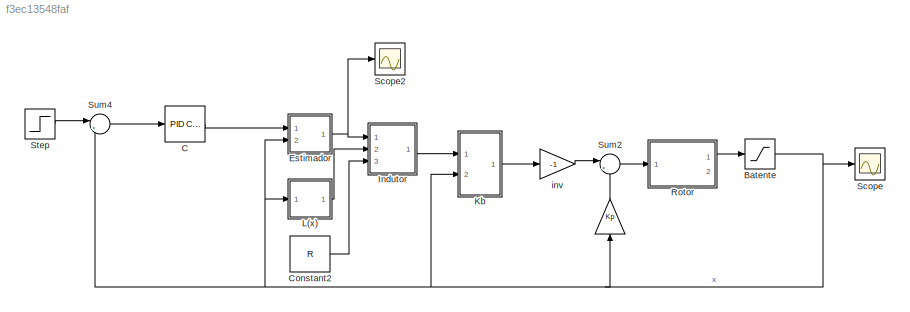
MODEL slx_f3ec13548faf
KIND model
BLOCK [Gain]  
  Gain = Kp
  OutDataTypeStr = Inherit: Inherit via internal rule
  ParamDataTypeStr = Inherit: Inherit via internal rule
  SaturateOnIntegerOverflow = off
BLOCK [Saturate] Batente
  InputPortMap = u0
  LowerLimit = -gb
  Ports = [1, 1]
  UpperLimit = gb
BLOCK [Reference] C  REF=simulink/Continuous/PID Controller
  AntiWindupMode = none
  Controller = PID
  D = 0.0177336811288622
  DOutDataTypeStr = Inherit: Inherit via internal rule
  DOutMax = []
  DOutMin = []
  DParamDataTypeStr = Inherit: Inherit via internal rule
  DParamMax = []
  DParamMin = []
  ExternalReset = none
  FilterContinuousStateAttributes = ''
  FilterMethod = Forward Euler
  FilterOutDataTypeStr = Inherit: Inherit via internal rule
  FilterOutMax = []
  FilterOutMin = []
  FilterRTWStateStorageClass = Auto
  FilterStateMustResolveToSignalObject = off
  Form = Ideal
  I = 5.69123962803468
  IOutDataTypeStr = Inherit: Inherit via internal rule
  IOutMax = []
  IOutMin = []
  IParamDataTypeStr = Inherit: Inherit via internal rule
  IParamMax = []
  IParamMin = []
  IgnoreLimit = off
  InitialConditionForFilter = 0
  InitialConditionForIntegrator = 0
  InitialConditionSource = internal
  IntegratorContinuousStateAttributes = ''
  IntegratorMethod = Forward Euler
  IntegratorOutDataTypeStr = Inherit: Inherit via internal rule
  IntegratorOutMax = []
  IntegratorOutMin = []
  IntegratorRTWStateStorageClass = Auto
  IntegratorStateMustResolveToSignalObject = off
  Kb = 1
  KbOutDataTypeStr = Inherit: Inherit via internal rule
  KbOutMax = []
  KbOutMin = []
  KbParamDataTypeStr = Inherit: Inherit via internal rule
  KbParamMax = []
  KbParamMin = []
  Kt = 1
  KtOutDataTypeStr = Inherit: Inherit via internal rule
  KtOutMax = []
  KtOutMin = []
  KtParamDataTypeStr = Inherit: Inherit via internal rule
  KtParamMax = []
  KtParamMin = []
  LimitOutput = off
  LinearizeAsGain = on
  LockScale = off
  LowerSaturationLimit = -inf
  N = 1559.20264332968
  NOutDataTypeStr = Inherit: Inherit via internal rule
  NOutMax = []
  NOutMin = []
  NParamDataTypeStr = Inherit: Inherit via internal rule
  NParamMax = []
  NParamMin = []
  P = -20745.2608556977
  POutDataTypeStr = Inherit: Inherit via internal rule
  POutMax = []
  POutMin = []
  PParamDataTypeStr = Inherit: Inherit via internal rule
  PParamMax = []
  PParamMin = []
  Ports = [1, 1]
  RndMeth = Floor
  SampleTime = 1
  SaturateOnIntegerOverflow = off
  SaturationOutDataTypeStr = Inherit: Same as input
  SaturationOutMax = []
  SaturationOutMin = []
  SourceBlock = simulink/Continuous/PID Controller
  SourceType = PID 1dof
  SumAccumDataTypeStr = Inherit: Inherit via internal rule
  SumDAccumDataTypeStr = Inherit: Inherit via internal rule
  SumDOutDataTypeStr = Inherit: Inherit via internal rule
  SumDOutMax = []
  SumDOutMin = []
  SumI1AccumDataTypeStr = Inherit: Inherit via internal rule
  SumI1OutDataTypeStr = Inherit: Inherit via internal rule
  SumI1OutMax = []
  SumI1OutMin = []
  SumI2AccumDataTypeStr = Inherit: Inherit via internal rule
  SumI2OutDataTypeStr = Inherit: Inherit via internal rule
  SumI2OutMax = []
  SumI2OutMin = []
  SumI3AccumDataTypeStr = Inherit: Inherit via internal rule
  SumI3OutDataTypeStr = Inherit: Inherit via internal rule
  SumI3OutMax = []
  SumI3OutMin = []
  SumOutDataTypeStr = Inherit: Inherit via internal rule
  SumOutMax = []
  SumOutMin = []
  TimeDomain = Continuous-time
  TrackingMode = off
  UpperSaturationLimit = inf
  ZeroCross = on
BLOCK [Constant] Constant2
  Value = R
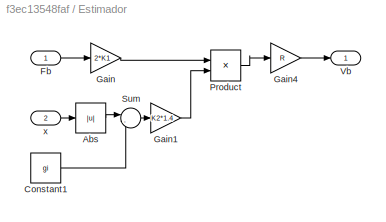
BLOCK [SubSystem] Estimador
  FunctionWithSeparateData = off
  MaskHideContents = off
  MinAlgLoopOccurrences = off
  Opaque = off
  Ports = [2, 1]
  PropExecContextOutsideSubsystem = off
  RTWSystemCode = Auto
  RequestExecContextInheritance = off
BLOCK [Abs] Estimador/Abs
  SaturateOnIntegerOverflow = off
BLOCK [Constant] Estimador/Constant1
  Value = gi
BLOCK [Inport] Estimador/Fb 
  IconDisplay = Port number
BLOCK [Gain] Estimador/Gain
  Gain = 2*K1
  OutDataTypeStr = Inherit: Inherit via internal rule
  ParamDataTypeStr = Inherit: Inherit via internal rule
  SaturateOnIntegerOverflow = off
BLOCK [Gain] Estimador/Gain1
  Gain = K2*1.4
  OutDataTypeStr = Inherit: Inherit via internal rule
  ParamDataTypeStr = Inherit: Inherit via internal rule
  SaturateOnIntegerOverflow = off
BLOCK [Gain] Estimador/Gain4
  Gain = R
  OutDataTypeStr = Inherit: Inherit via internal rule
  ParamDataTypeStr = Inherit: Inherit via internal rule
  SaturateOnIntegerOverflow = off
BLOCK [Product] Estimador/Product
  InputSameDT = off
  OutDataTypeStr = Inherit: Inherit via internal rule
  Ports = [2, 1]
  RndMeth = Floor
  SaturateOnIntegerOverflow = off
BLOCK [Sum] Estimador/Sum
  IconShape = round
  InputSameDT = off
  Inputs = |-+
  OutDataTypeStr = Inherit: Inherit via internal rule
  Ports = [2, 1]
  SaturateOnIntegerOverflow = off
BLOCK [Outport] Estimador/Vb
  IconDisplay = Port number
BLOCK [Inport] Estimador/x
  IconDisplay = Port number
  Port = 2
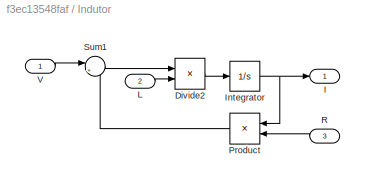
BLOCK [SubSystem] Indutor
  FunctionWithSeparateData = off
  MaskHideContents = off
  MinAlgLoopOccurrences = off
  Opaque = off
  Ports = [3, 1]
  PropExecContextOutsideSubsystem = off
  RTWSystemCode = Auto
  RequestExecContextInheritance = off
BLOCK [Product] Indutor/Divide2
  InputSameDT = off
  Inputs = */
  OutDataTypeStr = Inherit: Inherit via internal rule
  Ports = [2, 1]
  RndMeth = Floor
  SaturateOnIntegerOverflow = off
BLOCK [Outport] Indutor/I
  IconDisplay = Port number
BLOCK [Integrator] Indutor/Integrator
  Ports = [1, 1]
BLOCK [Inport] Indutor/L
  IconDisplay = Port number
  Port = 2
BLOCK [Product] Indutor/Product
  InputSameDT = off
  OutDataTypeStr = Inherit: Inherit via internal rule
  Ports = [2, 1]
  RndMeth = Floor
  SaturateOnIntegerOverflow = off
BLOCK [Inport] Indutor/R
  IconDisplay = Port number
  Port = 3
BLOCK [Sum] Indutor/Sum1
  IconShape = round
  InputSameDT = off
  Inputs = |+-
  OutDataTypeStr = Inherit: Inherit via internal rule
  Ports = [2, 1]
  SaturateOnIntegerOverflow = off
BLOCK [Inport] Indutor/V
  IconDisplay = Port number
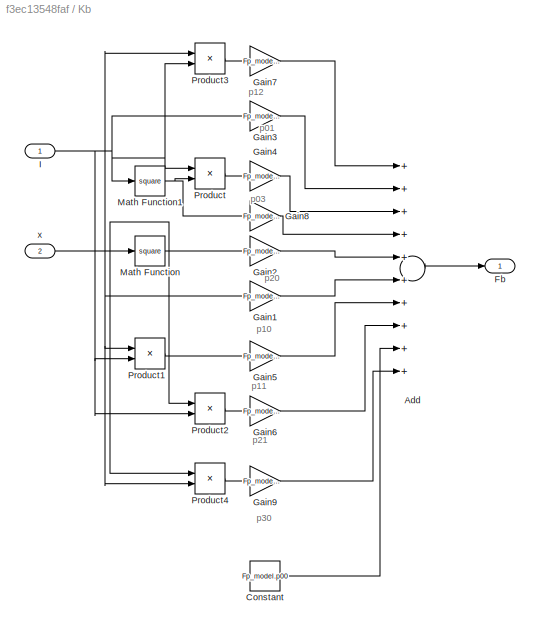
BLOCK [SubSystem] Kb
  FunctionWithSeparateData = off
  MaskHideContents = off
  MinAlgLoopOccurrences = off
  Opaque = off
  Ports = [2, 1]
  PropExecContextOutsideSubsystem = off
  RTWSystemCode = Auto
  RequestExecContextInheritance = off
BLOCK [Sum] Kb/Add
  InputSameDT = off
  Inputs = ++++++++++
  OutDataTypeStr = Inherit: Inherit via internal rule
  Ports = [10, 1]
  SaturateOnIntegerOverflow = off
BLOCK [Constant] Kb/Constant
  Value = Fp_model.p00
BLOCK [Outport] Kb/Fb
  IconDisplay = Port number
BLOCK [Gain] Kb/Gain1
  Gain = Fp_model.p10
  OutDataTypeStr = Inherit: Inherit via internal rule
  ParamDataTypeStr = Inherit: Inherit via internal rule
  SaturateOnIntegerOverflow = off
BLOCK [Gain] Kb/Gain2
  Gain = Fp_model.p20
  OutDataTypeStr = Inherit: Inherit via internal rule
  ParamDataTypeStr = Inherit: Inherit via internal rule
  SaturateOnIntegerOverflow = off
BLOCK [Gain] Kb/Gain3
  Gain = Fp_model.p01
  OutDataTypeStr = Inherit: Inherit via internal rule
  ParamDataTypeStr = Inherit: Inherit via internal rule
  SaturateOnIntegerOverflow = off
BLOCK [Gain] Kb/Gain4
  Gain = Fp_model.p03
  OutDataTypeStr = Inherit: Inherit via internal rule
  ParamDataTypeStr = Inherit: Inherit via internal rule
  SaturateOnIntegerOverflow = off
BLOCK [Gain] Kb/Gain5
  Gain = Fp_model.p11
  OutDataTypeStr = Inherit: Inherit via internal rule
  ParamDataTypeStr = Inherit: Inherit via internal rule
  SaturateOnIntegerOverflow = off
BLOCK [Gain] Kb/Gain6
  Gain = Fp_model.p21
  OutDataTypeStr = Inherit: Inherit via internal rule
  ParamDataTypeStr = Inherit: Inherit via internal rule
  SaturateOnIntegerOverflow = off
BLOCK [Gain] Kb/Gain7
  Gain = Fp_model.p12
  OutDataTypeStr = Inherit: Inherit via internal rule
  ParamDataTypeStr = Inherit: Inherit via internal rule
  SaturateOnIntegerOverflow = off
BLOCK [Gain] Kb/Gain8
  Gain = Fp_model.p02
  OutDataTypeStr = Inherit: Inherit via internal rule
  ParamDataTypeStr = Inherit: Inherit via internal rule
  SaturateOnIntegerOverflow = off
BLOCK [Gain] Kb/Gain9
  Gain = Fp_model.p30
  OutDataTypeStr = Inherit: Inherit via internal rule
  ParamDataTypeStr = Inherit: Inherit via internal rule
  SaturateOnIntegerOverflow = off
BLOCK [Inport] Kb/I
  IconDisplay = Port number
BLOCK [Math] Kb/Math Function
  Operator = square
  Ports = [1, 1]
BLOCK [Math] Kb/Math Function1
  Operator = square
  Ports = [1, 1]
BLOCK [Product] Kb/Product
  InputSameDT = off
  OutDataTypeStr = Inherit: Inherit via internal rule
  Ports = [2, 1]
  SaturateOnIntegerOverflow = off
BLOCK [Product] Kb/Product1
  InputSameDT = off
  OutDataTypeStr = Inherit: Inherit via internal rule
  Ports = [2, 1]
  SaturateOnIntegerOverflow = off
BLOCK [Product] Kb/Product2
  InputSameDT = off
  OutDataTypeStr = Inherit: Inherit via internal rule
  Ports = [2, 1]
  SaturateOnIntegerOverflow = off
BLOCK [Product] Kb/Product3
  InputSameDT = off
  OutDataTypeStr = Inherit: Inherit via internal rule
  Ports = [2, 1]
  SaturateOnIntegerOverflow = off
BLOCK [Product] Kb/Product4
  InputSameDT = off
  OutDataTypeStr = Inherit: Inherit via internal rule
  Ports = [2, 1]
  SaturateOnIntegerOverflow = off
BLOCK [Inport] Kb/x
  IconDisplay = Port number
  Port = 2
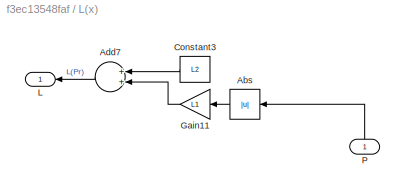
BLOCK [SubSystem] L(x)
  FunctionWithSeparateData = off
  MaskHideContents = off
  MinAlgLoopOccurrences = off
  Opaque = off
  Ports = [1, 1]
  PropExecContextOutsideSubsystem = off
  RTWSystemCode = Auto
  RequestExecContextInheritance = off
BLOCK [Abs] L(x)/Abs
  SaturateOnIntegerOverflow = off
BLOCK [Sum] L(x)/Add7
  InputSameDT = off
  OutDataTypeStr = Inherit: Inherit via internal rule
  Ports = [2, 1]
  SaturateOnIntegerOverflow = off
BLOCK [Constant] L(x)/Constant3
  Value = L2
BLOCK [Gain] L(x)/Gain11
  Gain = L1
  OutDataTypeStr = Inherit: Inherit via internal rule
  ParamDataTypeStr = Inherit: Inherit via internal rule
  SaturateOnIntegerOverflow = off
BLOCK [Outport] L(x)/L
  IconDisplay = Port number
BLOCK [Inport] L(x)/P
  IconDisplay = Port number
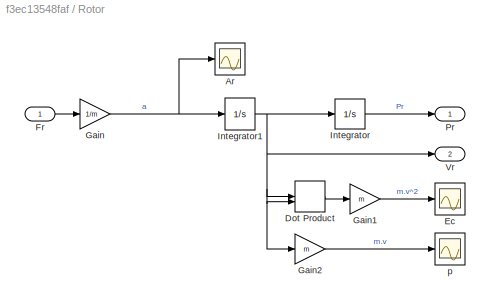
BLOCK [SubSystem] Rotor
  FunctionWithSeparateData = off
  MaskHideContents = off
  MinAlgLoopOccurrences = off
  Opaque = off
  Ports = [1, 2]
  PropExecContextOutsideSubsystem = off
  RTWSystemCode = Auto
  RequestExecContextInheritance = off
BLOCK [Scope] Rotor/Ar
  DataFormat = StructureWithTime
  Floating = off
  LimitDataPoints = off
  NumInputPorts = 1
  Ports = [1]
  SampleTime = 0
  SaveName = ScopeData9
  ShowLegends = off
  TimeRange = 1
  YMax = 200000
  YMin = -200000
BLOCK [DotProduct] Rotor/Dot Product
  OutDataTypeStr = Inherit: Inherit via internal rule
BLOCK [Scope] Rotor/Ec
  DataFormat = StructureWithTime
  Floating = off
  LimitDataPoints = off
  NumInputPorts = 1
  Ports = [1]
  SampleTime = 0
  SaveName = ScopeData16
  ShowLegends = off
  TimeRange = 0.25
  YMax = 0.09
  YMin = 0
BLOCK [Inport] Rotor/Fr
  IconDisplay = Port number
BLOCK [Gain] Rotor/Gain
  Gain = 1/m
  OutDataTypeStr = Inherit: Inherit via internal rule
  ParamDataTypeStr = Inherit: Inherit via internal rule
  SaturateOnIntegerOverflow = off
BLOCK [Gain] Rotor/Gain1
  Gain = m
  OutDataTypeStr = Inherit: Inherit via internal rule
  ParamDataTypeStr = Inherit: Inherit via internal rule
  SaturateOnIntegerOverflow = off
BLOCK [Gain] Rotor/Gain2
  Gain = m
  OutDataTypeStr = Inherit: Inherit via internal rule
  ParamDataTypeStr = Inherit: Inherit via internal rule
  SaturateOnIntegerOverflow = off
BLOCK [Integrator] Rotor/Integrator
  LowerSaturationLimit = -Inf
  Ports = [1, 1]
  UpperSaturationLimit = Inf
BLOCK [Integrator] Rotor/Integrator1
  Ports = [1, 1]
BLOCK [Outport] Rotor/Pr
  IconDisplay = Port number
BLOCK [Outport] Rotor/Vr
  IconDisplay = Port number
  Port = 2
BLOCK [Scope] Rotor/p
  DataFormat = StructureWithTime
  Floating = off
  LimitDataPoints = off
  NumInputPorts = 1
  Ports = [1]
  SampleTime = 0
  SaveName = ScopeData17
  ShowLegends = off
  TimeRange = 1
  YMax = 200000
  YMin = -200000
BLOCK [Scope] Scope
  DataFormat = StructureWithTime
  Floating = off
  LimitDataPoints = off
  NumInputPorts = 1
  Ports = [1]
  SampleTime = 0
  SaveName = simulink_posicao
  SaveToWorkspace = on
  ShowLegends = off
  YMax = 0.0001525
  YMin = 9.75e-05
BLOCK [Scope] Scope2
  DataFormat = StructureWithTime
  Floating = off
  LimitDataPoints = off
  NumInputPorts = 1
  Ports = [1]
  SampleTime = 0
  SaveName = simulink_esforco
  SaveToWorkspace = on
  ShowLegends = off
  YMax = 0.0001525
  YMin = 9.75e-05
BLOCK [Step] Step
  After = 0
  SampleTime = 0
  Time = 0
BLOCK [Sum] Sum2
  IconShape = round
  InputSameDT = off
  Inputs = |++
  OutDataTypeStr = Inherit: Inherit via internal rule
  Ports = [2, 1]
  SaturateOnIntegerOverflow = off
BLOCK [Sum] Sum4
  IconShape = round
  InputSameDT = off
  Inputs = |+-
  OutDataTypeStr = Inherit: Inherit via internal rule
  Ports = [2, 1]
  SaturateOnIntegerOverflow = off
BLOCK [Gain] inv
  Gain = -1
  OutDataTypeStr = Inherit: Inherit via internal rule
  ParamDataTypeStr = Inherit: Inherit via internal rule
  SaturateOnIntegerOverflow = off
ANNOTATION Kb: p01
ANNOTATION Kb: p03
ANNOTATION Kb: p10
ANNOTATION Kb: p11
ANNOTATION Kb: p12
ANNOTATION Kb: p20
ANNOTATION Kb: p21
ANNOTATION Kb: p30
LINE  :1 -> Sum2:2
NET Batente:1 ->  :1, Estimador:2, Kb:2, L(x):1, Scope:1, Sum4:2
LINE C:1 -> Estimador:1
LINE Constant2:1 -> Indutor:3
LINE Estimador/Abs:1 -> Estimador/Sum:1
LINE Estimador/Constant1:1 -> Estimador/Sum:2
LINE Estimador/Fb :1 -> Estimador/Gain:1
LINE Estimador/Gain1:1 -> Estimador/Product:2
LINE Estimador/Gain4:1 -> Estimador/Vb:1
LINE Estimador/Gain:1 -> Estimador/Product:1
LINE Estimador/Product:1 -> Estimador/Gain4:1
LINE Estimador/Sum:1 -> Estimador/Gain1:1
LINE Estimador/x:1 -> Estimador/Abs:1
NET Estimador:1 -> Indutor:1, Scope2:1
LINE Indutor/Divide2:1 -> Indutor/Integrator:1
NET Indutor/Integrator:1 -> Indutor/I:1, Indutor/Product:1
LINE Indutor/L:1 -> Indutor/Divide2:2
LINE Indutor/Product:1 -> Indutor/Sum1:2
LINE Indutor/R:1 -> Indutor/Product:2
LINE Indutor/Sum1:1 -> Indutor/Divide2:1
LINE Indutor/V:1 -> Indutor/Sum1:1
LINE Indutor:1 -> Kb:1
LINE Kb/Add:1 -> Kb/Fb:1
LINE Kb/Constant:1 -> Kb/Add:9
LINE Kb/Gain1:1 -> Kb/Add:6
LINE Kb/Gain2:1 -> Kb/Add:5
LINE Kb/Gain3:1 -> Kb/Add:2
LINE Kb/Gain4:1 -> Kb/Add:3
LINE Kb/Gain5:1 -> Kb/Add:7
LINE Kb/Gain6:1 -> Kb/Add:8
LINE Kb/Gain7:1 -> Kb/Add:1
LINE Kb/Gain8:1 -> Kb/Add:4
LINE Kb/Gain9:1 -> Kb/Add:10
NET Kb/I:1 -> Kb/Gain3:1, Kb/Math Function1:1, Kb/Product1:2, Kb/Product2:2, Kb/Product3:2, Kb/Product:1
NET Kb/Math Function1:1 -> Kb/Gain8:1, Kb/Product:2
NET Kb/Math Function:1 -> Kb/Gain2:1, Kb/Product2:1, Kb/Product4:1
LINE Kb/Product1:1 -> Kb/Gain5:1
LINE Kb/Product2:1 -> Kb/Gain6:1
LINE Kb/Product3:1 -> Kb/Gain7:1
LINE Kb/Product4:1 -> Kb/Gain9:1
LINE Kb/Product:1 -> Kb/Gain4:1
NET Kb/x:1 -> Kb/Gain1:1, Kb/Math Function:1, Kb/Product1:1, Kb/Product3:1, Kb/Product4:2
LINE Kb:1 -> inv:1
LINE L(x)/Abs:1 -> L(x)/Gain11:1
LINE L(x)/Add7:1 -> L(x)/L:1
LINE L(x)/Constant3:1 -> L(x)/Add7:1
LINE L(x)/Gain11:1 -> L(x)/Add7:2
LINE L(x)/P:1 -> L(x)/Abs:1
LINE L(x):1 -> Indutor:2
LINE Rotor/Dot Product:1 -> Rotor/Gain1:1
LINE Rotor/Fr:1 -> Rotor/Gain:1
LINE Rotor/Gain1:1 -> Rotor/Ec:1
LINE Rotor/Gain2:1 -> Rotor/p:1
NET Rotor/Gain:1 -> Rotor/Ar:1, Rotor/Integrator1:1
NET Rotor/Integrator1:1 -> Rotor/Dot Product:1, Rotor/Dot Product:2, Rotor/Gain2:1, Rotor/Integrator:1, Rotor/Vr:1
LINE Rotor/Integrator:1 -> Rotor/Pr:1
LINE Rotor:1 -> Batente:1
LINE Step:1 -> Sum4:1
LINE Sum2:1 -> Rotor:1
LINE Sum4:1 -> C:1
LINE inv:1 -> Sum2:1
note: NET lines group one-source signal fan-out (src -> all destinations, sorted); 1:1 wires keep LINE
